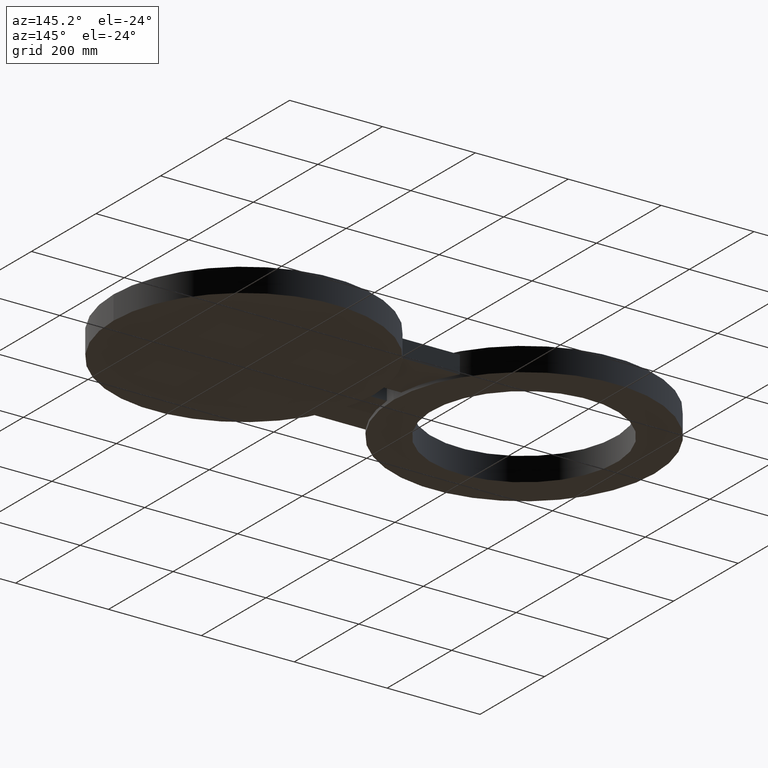
[diagram: clean part render]
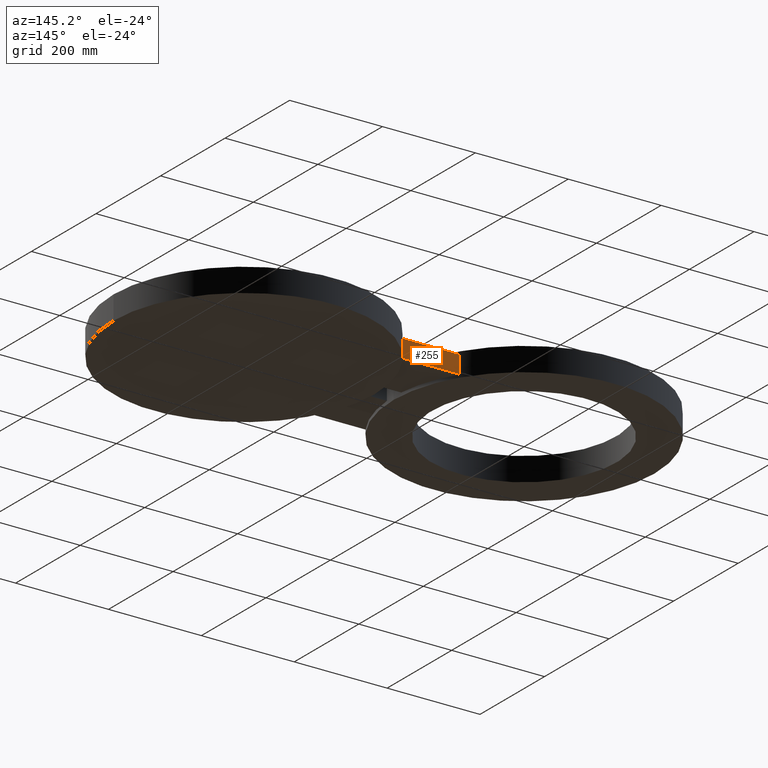
[diagram: same view with one face highlighted and labeled with its STEP entity id]
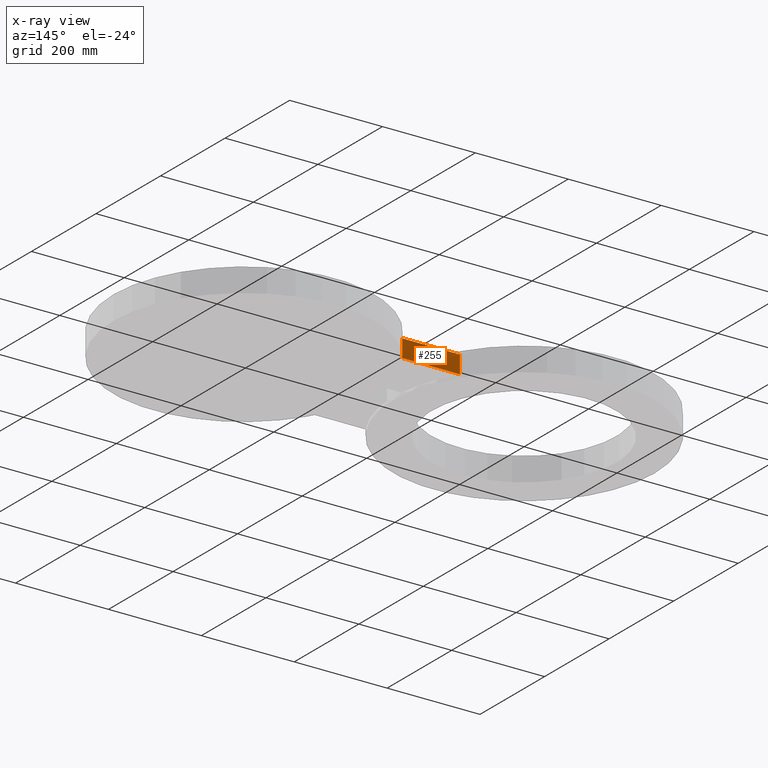
[diagram: x-ray of the same camera — body ghosted, the highlighted face saturated]
A machine part, auxiliary view. The second image highlights one B-rep face of the part: STEP entity #255.
The next image is the same camera in x-ray: the body ghosted, the highlighted face saturated — about 0% of this face is hidden behind the body in this view.
In plain terms, the highlighted planar face has unit normal (0, 1, -0).
Its self-contained STEP definition (entity closure, byte-faithful):
#219=AXIS2_PLACEMENT_3D('Plane Axis2P3D',#216,#217,#218) ;
#216=CARTESIAN_POINT('Axis2P3D Location',(14.3052355774,5.75500000002,0.)) ;
#221=CARTESIAN_POINT('Line Origine',(14.3052355774,5.75500000002,0.)) ;
#225=CARTESIAN_POINT('Vertex',(14.3052355774,5.75500000002,-0.750000000003)) ;
#227=CARTESIAN_POINT('Vertex',(14.3052355774,5.75500000002,0.750000000003)) ;
#230=CARTESIAN_POINT('Line Origine',(11.875,5.75500000002,-0.750000000003)) ;
#234=CARTESIAN_POINT('Vertex',(9.44476442272,5.75500000002,-0.750000000003)) ;
#237=CARTESIAN_POINT('Line Origine',(9.44476442272,5.75500000002,0.)) ;
#241=CARTESIAN_POINT('Vertex',(9.44476442272,5.75500000002,0.750000000003)) ;
#244=CARTESIAN_POINT('Line Origine',(11.875,5.75500000002,0.750000000003)) ;
#217=DIRECTION('Axis2P3D Direction',(0.,0.0393700787402,-0.)) ;
#218=DIRECTION('Axis2P3D XDirection',(-0.0393700787402,0.,0.)) ;
#222=DIRECTION('Vector Direction',(0.,0.,0.0393700787402)) ;
#231=DIRECTION('Vector Direction',(-0.0393700787402,0.,0.)) ;
#238=DIRECTION('Vector Direction',(0.,0.,0.0393700787402)) ;
#245=DIRECTION('Vector Direction',(-0.0393700787402,0.,0.)) ;
#223=VECTOR('Line Direction',#222,0.0393700787402) ;
#232=VECTOR('Line Direction',#231,0.0393700787402) ;
#239=VECTOR('Line Direction',#238,0.0393700787402) ;
#246=VECTOR('Line Direction',#245,0.0393700787402) ;
#250=ORIENTED_EDGE('',*,*,#229,.F.) ;
#251=ORIENTED_EDGE('',*,*,#236,.T.) ;
#252=ORIENTED_EDGE('',*,*,#243,.T.) ;
#253=ORIENTED_EDGE('',*,*,#248,.F.) ;
#255=ADVANCED_FACE('PartBody',(#254),#220,.T.) ;
#229=EDGE_CURVE('',#226,#228,#224,.T.) ;
#236=EDGE_CURVE('',#226,#235,#233,.T.) ;
#243=EDGE_CURVE('',#235,#242,#240,.T.) ;
#248=EDGE_CURVE('',#228,#242,#247,.T.) ;
#249=EDGE_LOOP('',(#250,#251,#252,#253)) ;
#254=FACE_OUTER_BOUND('',#249,.T.) ;
#224=LINE('Line',#221,#223) ;
#233=LINE('Line',#230,#232) ;
#240=LINE('Line',#237,#239) ;
#247=LINE('Line',#244,#246) ;
#220=PLANE('',#219) ;
#226=VERTEX_POINT('',#225) ;
#228=VERTEX_POINT('',#227) ;
#235=VERTEX_POINT('',#234) ;
#242=VERTEX_POINT('',#241) ;